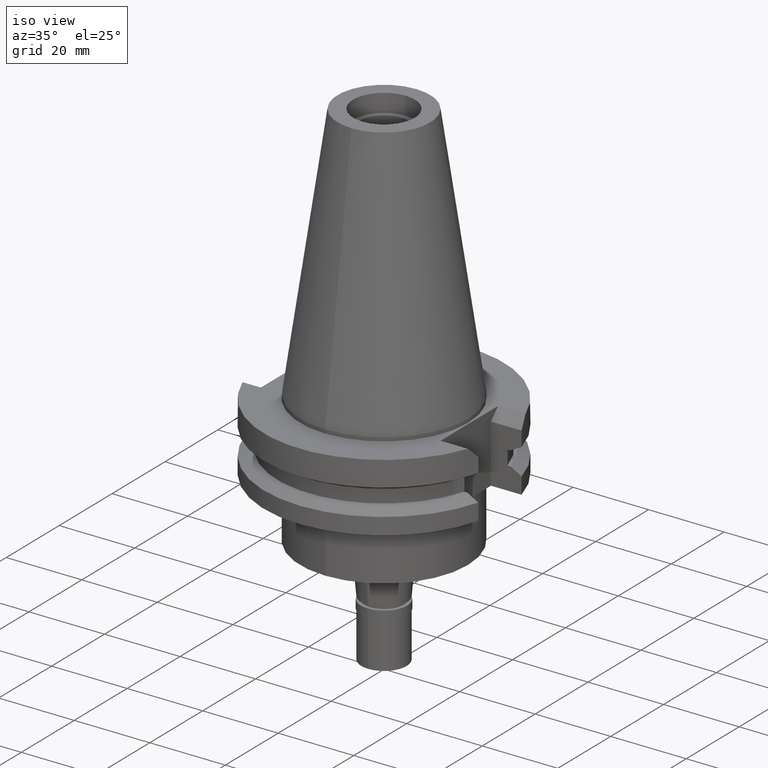
[diagram: clean part render]
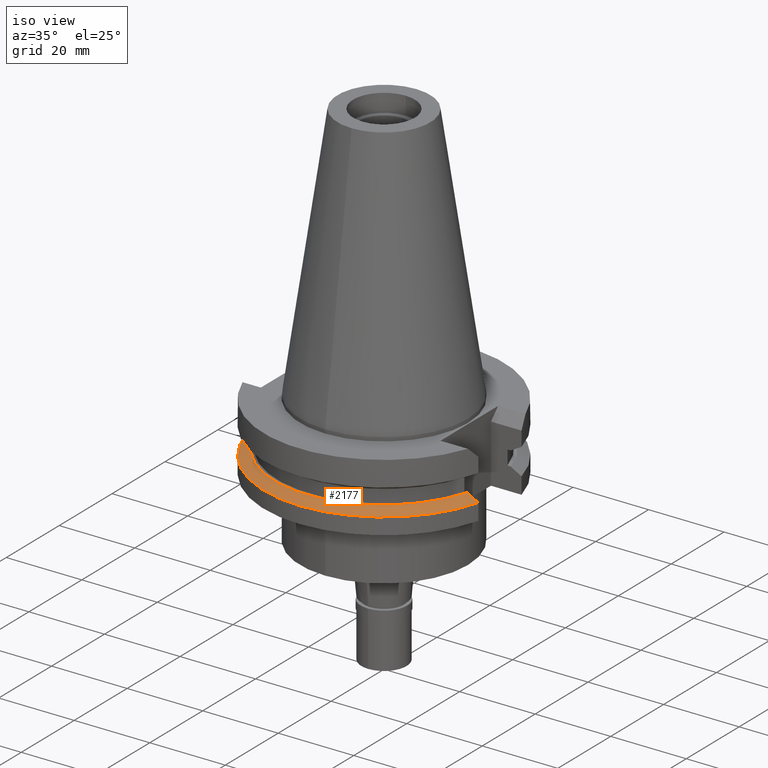
[diagram: same view with one face highlighted and labeled with its STEP entity id]
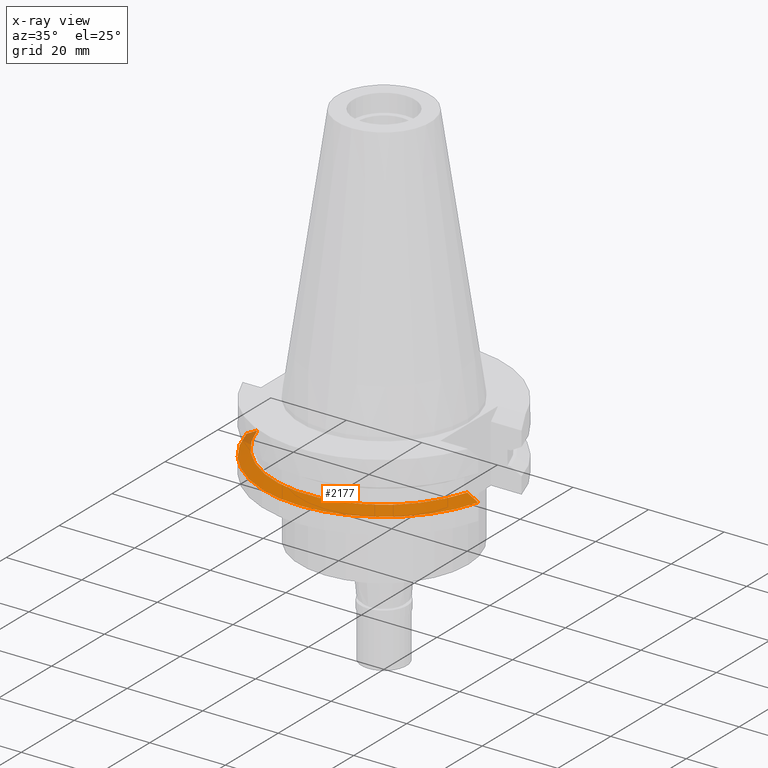
[diagram: x-ray of the same camera — body ghosted, the highlighted face saturated]
A machine part, iso view. The second image highlights one B-rep face of the part: STEP entity #2177.
The next image is the same camera in x-ray: the body ghosted, the highlighted face saturated — about 3% of this face is hidden behind the body in this view.
In plain terms, the highlighted conical surface has half-angle 60 deg.
Its self-contained STEP definition (entity closure, byte-faithful):
#189 = EDGE_LOOP ( 'NONE', ( #380, #1626, #585, #1498 ) ) ;
#205 = CONICAL_SURFACE ( 'NONE', #476, 30.35901877526999826, 1.047197551196400456 ) ;
#251 = CARTESIAN_POINT ( 'NONE',  ( -28.73079411515999837, -8.190000283108000545, -13.57110067000000164 ) ) ;
#317 = CARTESIAN_POINT ( 'NONE',  ( 27.78616457875999757, -8.190000188247999802, -13.04749999999999943 ) ) ;
#380 = ORIENTED_EDGE ( 'NONE', *, *, #699, .F. ) ;
#425 = EDGE_CURVE ( 'NONE', #766, #2953, #2174, .T. ) ;
#476 = AXIS2_PLACEMENT_3D ( 'NONE', #3079, #2397, #2093 ) ;
#524 = VERTEX_POINT ( 'NONE', #1681 ) ;
#585 = ORIENTED_EDGE ( 'NONE', *, *, #603, .F. ) ;
#603 = EDGE_CURVE ( 'NONE', #2953, #524, #3102, .T. ) ;
#699 = EDGE_CURVE ( 'NONE', #1915, #766, #2142, .T. ) ;
#741 = CIRCLE ( 'NONE', #2543, 28.96803755052999918 ) ;
#766 = VERTEX_POINT ( 'NONE', #2331 ) ;
#779 = AXIS2_PLACEMENT_3D ( 'NONE', #2613, #1394, #2383 ) ;
#874 = DIRECTION ( 'NONE',  ( 0.0000000000000000000, -1.000000000000000000, 0.0000000000000000000 ) ) ;
#931 = CARTESIAN_POINT ( 'NONE',  ( -30.67550165990999744, -8.189999872586001928, -14.65366563049999904 ) ) ;
#1172 = CARTESIAN_POINT ( 'NONE',  ( -27.78617709662999857, -8.189999356936999320, -13.04749999999999943 ) ) ;
#1394 = DIRECTION ( 'NONE',  ( 0.0000000000000000000, 0.0000000000000000000, -1.000000000000000000 ) ) ;
#1409 = FACE_OUTER_BOUND ( 'NONE', #189, .T. ) ;
#1498 = ORIENTED_EDGE ( 'NONE', *, *, #425, .F. ) ;
#1626 = ORIENTED_EDGE ( 'NONE', *, *, #3181, .T. ) ;
#1681 = CARTESIAN_POINT ( 'NONE',  ( -27.78617709662999857, -8.189999356936999320, -13.04749999999999943 ) ) ;
#1708 = CARTESIAN_POINT ( 'NONE',  ( -30.34653495160999981, -8.189999872586001928, -14.47016427908999958 ) ) ;
#1778 = CARTESIAN_POINT ( 'NONE',  ( 30.34652885392000243, -8.190000608162000262, -14.47016756402000048 ) ) ;
#1819 = CARTESIAN_POINT ( 'NONE',  ( 28.09928442412000038, -8.190000188247999802, -13.22090417000000073 ) ) ;
#1915 = VERTEX_POINT ( 'NONE', #317 ) ;
#2093 = DIRECTION ( 'NONE',  ( 0.0000000000000000000, -1.000000000000000000, 0.0000000000000000000 ) ) ;
#2100 = CARTESIAN_POINT ( 'NONE',  ( 0.0000000000000000000, 1.055026073064999954E-14, -13.04749999999999943 ) ) ;
#2142 = B_SPLINE_CURVE_WITH_KNOTS ( 'NONE', 3,
 ( #2307, #1819, #3030, #2769, #1778, #2322 ),
 .UNSPECIFIED., .F., .F.,
 ( 4, 1, 1, 4 ),
 ( 0.0000000000000000000, 0.3333333333333000081, 0.6666666666667000474, 1.000000000000000000 ),
 .UNSPECIFIED. ) ;
#2174 = CIRCLE ( 'NONE', #779, 31.74999999999998579 ) ;
#2177 = ADVANCED_FACE ( 'NONE', ( #1409 ), #205, .T. ) ;
#2307 = CARTESIAN_POINT ( 'NONE',  ( 27.78616457875999757, -8.190000188247999802, -13.04749999999999943 ) ) ;
#2322 = CARTESIAN_POINT ( 'NONE',  ( 30.67550146351999629, -8.190000608162000262, -14.65367220372000112 ) ) ;
#2331 = CARTESIAN_POINT ( 'NONE',  ( 30.67550146351999629, -8.190000608162000262, -14.65367220372000112 ) ) ;
#2383 = DIRECTION ( 'NONE',  ( 0.9661575315241073270, -0.2579527559055020958, 0.0000000000000000000 ) ) ;
#2397 = DIRECTION ( 'NONE',  ( 0.0000000000000000000, 0.0000000000000000000, -1.000000000000000000 ) ) ;
#2543 = AXIS2_PLACEMENT_3D ( 'NONE', #2100, #3084, #874 ) ;
#2613 = CARTESIAN_POINT ( 'NONE',  ( 0.0000000000000000000, 1.055026073064999954E-14, -14.65366676908000088 ) ) ;
#2678 = CARTESIAN_POINT ( 'NONE',  ( -29.69389312159000127, -8.189999973718000703, -14.10650685905999957 ) ) ;
#2769 = CARTESIAN_POINT ( 'NONE',  ( 29.69389160701999941, -8.189999741291000390, -14.10650333808000134 ) ) ;
#2830 = CARTESIAN_POINT ( 'NONE',  ( -30.67550165990999744, -8.189999872586001928, -14.65366563049999904 ) ) ;
#2953 = VERTEX_POINT ( 'NONE', #2830 ) ;
#3030 = CARTESIAN_POINT ( 'NONE',  ( 28.73078904373999976, -8.189999993238998854, -13.57109501666000106 ) ) ;
#3079 = CARTESIAN_POINT ( 'NONE',  ( 0.0000000000000000000, 1.055026073064999954E-14, -13.85058338454000015 ) ) ;
#3084 = DIRECTION ( 'NONE',  ( 0.0000000000000000000, 0.0000000000000000000, -1.000000000000000000 ) ) ;
#3102 = B_SPLINE_CURVE_WITH_KNOTS ( 'NONE', 3,
 ( #931, #1708, #2678, #251, #3127, #1172 ),
 .UNSPECIFIED., .F., .F.,
 ( 4, 1, 1, 4 ),
 ( 0.0000000000000000000, 0.3333333333333000081, 0.6666666666667000474, 1.000000000000000000 ),
 .UNSPECIFIED. ) ;
#3127 = CARTESIAN_POINT ( 'NONE',  ( -28.09928455059999663, -8.189999356936999320, -13.22089731229999998 ) ) ;
#3181 = EDGE_CURVE ( 'NONE', #1915, #524, #741, .T. ) ;